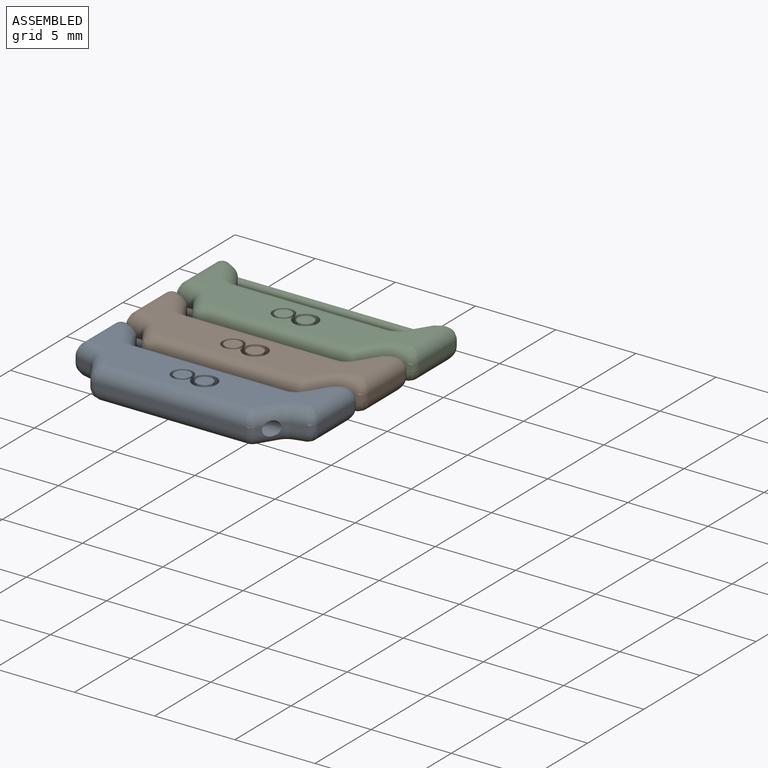
[diagram: assembled view]
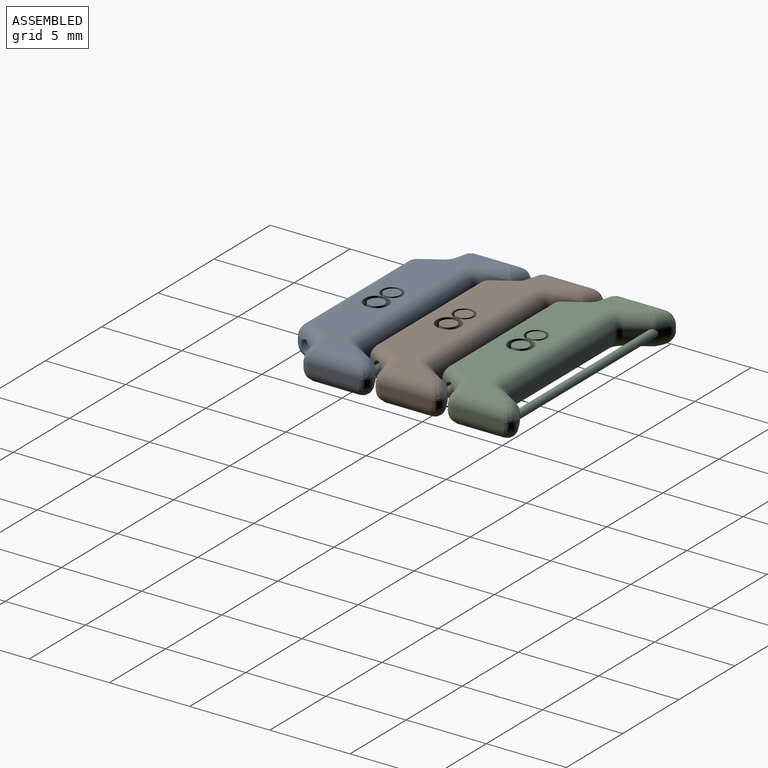
[diagram: assembled view, second angle]
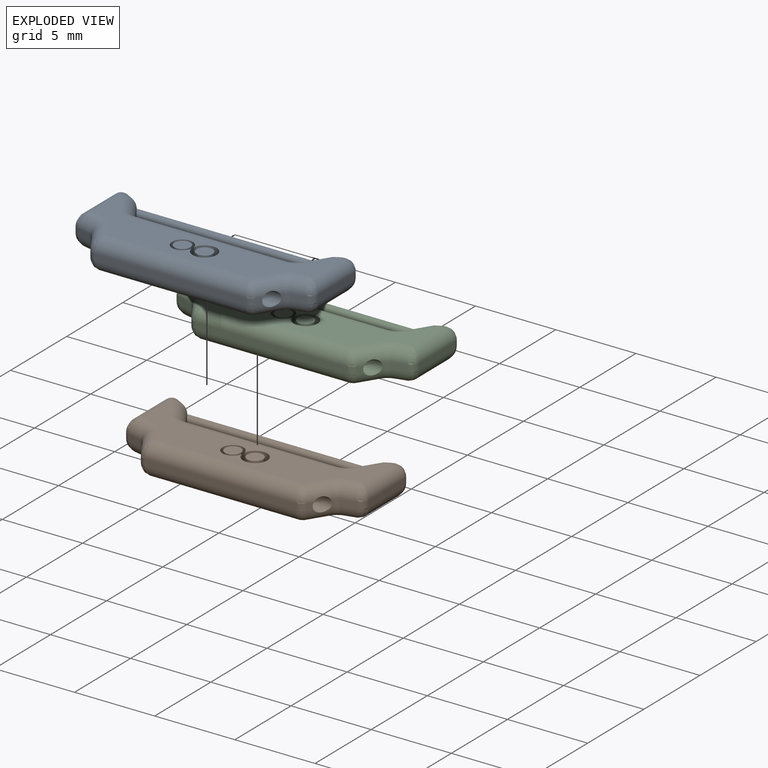
[diagram: exploded view]
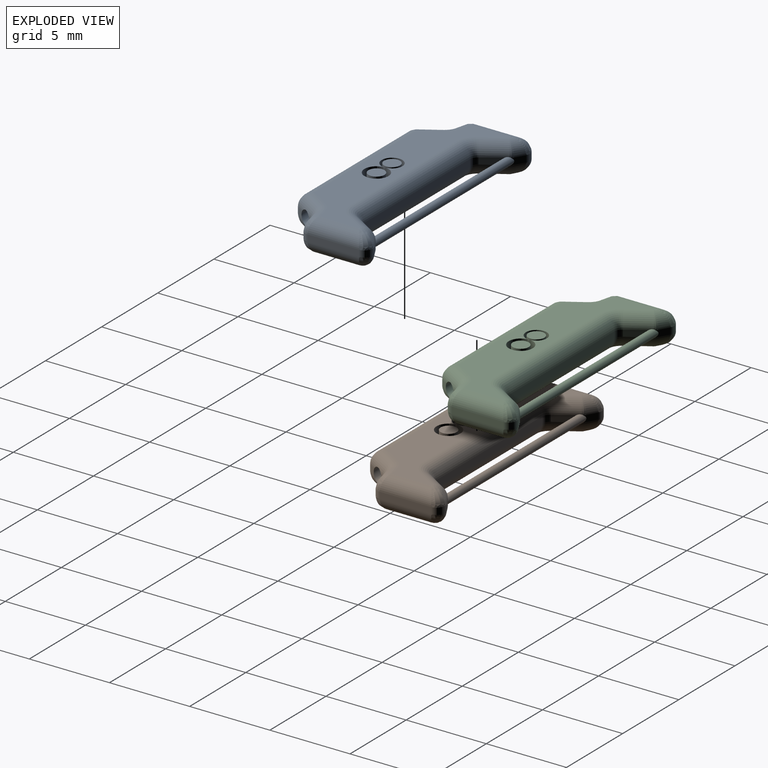
[diagram: exploded view, second angle]
ASSEMBLY  parts=3 mates=2
PART A: 85 faces, bbox 15.1x6.6x2.1 mm
  f0: cylinder r=0.5mm len=0.4mm, axis (0,0,-1), area 0mm2, adj f2,f6,f16,f77
  f1: cylinder r=0.5mm len=0.4mm, axis (0,0,-1), area 0mm2, adj f5,f9,f20,f77
  f2: bspline ~0.91x0.66mm, area 0.2mm2, adj f0,f3,f36,f77
  f3: cylinder r=0.8mm len=1.77mm, axis (0.53,0.85,0), area 1.9mm2, adj f2,f17,f24,f37,f77
  f4: cylinder r=0.8mm len=1.77mm, axis (0.53,-0.85,0), area 1.9mm2, adj f5,f19,f24,f41,f77
  f5: bspline ~0.91x0.66mm, area 0.2mm2, adj f1,f4,f45,f77
  f6: bspline ~0.91x0.66mm, area 0.2mm2, adj f0,f7,f56,f77
  f7: cylinder r=0.8mm len=1.77mm, axis (-0.53,-0.85,0), area 1.9mm2, adj f6,f17,f25,f58,f77
  f8: cylinder r=0.8mm len=1.77mm, axis (-0.53,0.85,0), area 1.9mm2, adj f9,f19,f25,f62,f77
  f9: bspline ~0.91x0.66mm, area 0.2mm2, adj f1,f8,f66,f77
  f10: plane 0.46x0.42mm, normal (0.85,-0.53,0), area 0.2mm2, adj f26,f46,f65,f76
  f11: plane 0.46x0.18mm, normal (-0.85,-0.53,0), area 0mm2, adj f34,f54,f73,f76
  f12: plane 9.45x0.4mm, normal (0,-1,0), area 3.8mm2, adj f26,f35,f50,f69
  f13: plane 0.46x0.18mm, normal (0.85,-0.53,0), area 0mm2, adj f27,f46,f65,f76
  f14: plane 0.86x0.4mm, normal (0.24,-0.97,0), area 0.4mm2, adj f27,f28,f43,f63
  f15: plane 3.2x0.4mm, normal (1,0,0), area 1.3mm2, adj f28,f29,f40,f59
  f16: plane 0.58x0.4mm, normal (-0.49,0.87,0), area 0.3mm2, adj f0,f29,f36,f56
  f17: plane 1.12x0.7mm, normal (-0.85,0.53,0), area 0.5mm2, adj f3,f7,f30,f77
  f18: plane 9.45x0.4mm, normal (0,1,0), area 3.8mm2, adj f30,f31,f39,f60
  f19: plane 1.12x0.7mm, normal (0.85,0.53,0), area 0.5mm2, adj f4,f8,f31,f77
  f20: plane 0.58x0.4mm, normal (0.49,0.87,0), area 0.3mm2, adj f1,f32,f45,f66
  f21: plane 3.2x0.4mm, normal (-1,0,0), area 1.3mm2, adj f32,f33,f49,f70
  f22: plane 0.86x0.4mm, normal (-0.24,-0.97,0), area 0.4mm2, adj f33,f34,f53,f74
  f23: plane 0.46x0.42mm, normal (-0.85,-0.53,0), area 0.2mm2, adj f35,f54,f73,f76
  f24: plane 13.4x4.33mm, normal (0,0,1), area 26.3mm2, adj f3,f4,f36,f37,f39,f40,f41,f43
  f25: plane 13.4x4.33mm, normal (0,0,-1), area 29.4mm2, adj f7,f8,f56,f58,f59,f60,f62,f63
  f26: cylinder r=0.5mm len=0.42mm, axis (0,0,1), area 0.2mm2, adj f10,f12,f48,f67
  f27: cylinder r=0.5mm len=0.4mm, axis (0,0,1), area 0.2mm2, adj f13,f14,f44,f64
  f28: cylinder r=0.5mm len=0.49mm, axis (0,0,-1), area 0.3mm2, adj f14,f15,f42,f61
  f29: cylinder r=0.5mm len=0.75mm, axis (0,0,-1), area 0.4mm2, adj f15,f16,f38,f57
  f30: cylinder r=0.5mm len=0.42mm, axis (0,0,1), area 0.2mm2, adj f17,f18,f37,f58
  f31: cylinder r=0.5mm len=0.42mm, axis (0,0,-1), area 0.2mm2, adj f18,f19,f41,f62
  f32: cylinder r=0.5mm len=0.75mm, axis (0,0,-1), area 0.4mm2, adj f20,f21,f47,f68
  f33: cylinder r=0.5mm len=0.49mm, axis (0,0,-1), area 0.3mm2, adj f21,f22,f51,f72
  f34: cylinder r=0.5mm len=0.4mm, axis (0,0,1), area 0.2mm2, adj f11,f22,f55,f75
  f35: cylinder r=0.5mm len=0.42mm, axis (0,0,-1), area 0.2mm2, adj f12,f23,f52,f71
  f36: cylinder r=0.8mm len=1.02mm, axis (0.87,0.49,0), area 0.6mm2, adj f2,f16,f24,f38
  f37: torus R=1.3mm, axis (0,0,1), area 1mm2, adj f3,f24,f30,f39
  f38: bspline ~1.37x1.09mm, area 0.9mm2, adj f29,f36,f40
  f39: cylinder r=0.8mm len=9.45mm, axis (1,0,0), area 11.9mm2, adj f18,f24,f37,f41
  f40: cylinder r=0.8mm len=3.2mm, axis (0,-1,0), area 3.6mm2, adj f15,f24,f38,f42
  f41: torus R=1.3mm, axis (0,0,1), area 1mm2, adj f4,f24,f31,f39
  f42: bspline ~0.94x0.8mm, area 0.4mm2, adj f28,f40,f43
  f43: cylinder r=0.8mm len=1.06mm, axis (-0.97,-0.24,0), area 1mm2, adj f14,f24,f42,f44
  f44: torus R=1.3mm, axis (0,0,1), area 0.8mm2, adj f24,f27,f43,f46
  f45: cylinder r=0.8mm len=1.02mm, axis (0.87,-0.49,0), area 0.6mm2, adj f5,f20,f24,f47
  f46: cylinder r=0.8mm len=1.71mm, axis (-0.53,-0.85,0), area 1.6mm2, adj f10,f13,f24,f44,f48,f76
  f47: bspline ~1.37x1.09mm, area 0.9mm2, adj f32,f45,f49
  f48: bspline ~0.92x0.8mm, area 0.3mm2, adj f26,f46,f50
  f49: cylinder r=0.8mm len=3.2mm, axis (0,1,0), area 3.6mm2, adj f21,f24,f47,f51
  f50: cylinder r=0.8mm len=9.45mm, axis (-1,0,0), area 11.7mm2, adj f12,f24,f48,f52
  f51: bspline ~0.94x0.8mm, area 0.4mm2, adj f33,f49,f53
  f52: bspline ~0.92x0.8mm, area 0.3mm2, adj f35,f50,f54
  f53: cylinder r=0.8mm len=1.06mm, axis (-0.97,0.24,0), area 1mm2, adj f22,f24,f51,f55
  f54: cylinder r=0.8mm len=1.71mm, axis (-0.53,0.85,0), area 1.6mm2, adj f11,f23,f24,f52,f55,f76
  f55: torus R=1.3mm, axis (0,0,1), area 0.8mm2, adj f24,f34,f53,f54
  f56: cylinder r=0.8mm len=1.02mm, axis (-0.87,-0.49,0), area 0.6mm2, adj f6,f16,f25,f57
  f57: bspline ~1.37x1.09mm, area 0.9mm2, adj f29,f56,f59
  f58: torus R=1.3mm, axis (0,0,1), area 1mm2, adj f7,f25,f30,f60
  f59: cylinder r=0.8mm len=3.2mm, axis (0,1,0), area 3.6mm2, adj f15,f25,f57,f61
  f60: cylinder r=0.8mm len=9.45mm, axis (-1,0,0), area 11.9mm2, adj f18,f25,f58,f62
  f61: bspline ~0.94x0.8mm, area 0.4mm2, adj f28,f59,f63
  f62: torus R=1.3mm, axis (0,0,1), area 1mm2, adj f8,f25,f31,f60
  f63: cylinder r=0.8mm len=1.06mm, axis (0.97,0.24,0), area 1mm2, adj f14,f25,f61,f64
  f64: torus R=1.3mm, axis (0,0,1), area 0.8mm2, adj f25,f27,f63,f65
  f65: cylinder r=0.8mm len=1.71mm, axis (0.53,0.85,0), area 1.6mm2, adj f10,f13,f25,f64,f67,f76
  f66: cylinder r=0.8mm len=1.02mm, axis (-0.87,0.49,0), area 0.6mm2, adj f9,f20,f25,f68
  f67: bspline ~0.92x0.8mm, area 0.3mm2, adj f26,f65,f69
  f68: bspline ~1.37x1.09mm, area 0.9mm2, adj f32,f66,f70
  f69: cylinder r=0.8mm len=9.45mm, axis (1,0,0), area 11.7mm2, adj f12,f25,f67,f71
  f70: cylinder r=0.8mm len=3.2mm, axis (0,-1,0), area 3.6mm2, adj f21,f25,f68,f72
  f71: bspline ~0.92x0.8mm, area 0.3mm2, adj f35,f69,f73
  f72: bspline ~0.94x0.8mm, area 0.4mm2, adj f33,f70,f74
  f73: cylinder r=0.8mm len=1.71mm, axis (0.53,-0.85,0), area 1.6mm2, adj f11,f23,f25,f71,f75,f76
  f74: cylinder r=0.8mm len=1.06mm, axis (0.97,-0.24,0), area 1mm2, adj f22,f25,f72,f75
  f75: torus R=1.3mm, axis (0,0,1), area 0.8mm2, adj f25,f34,f73,f74
  f76: cylinder r=0.45mm len=11.77mm, axis (1,0,0), area 31.6mm2, adj f10,f11,f13,f23,f46,f54,f65,f73
  f77: cylinder r=0.25mm len=12.34mm, axis (-1,0,0), area 18.7mm2, adj f0,f1,f2,f3,f4,f5,f6,f7
  f78: cylinder r=0.75mm len=1.5mm, axis (0,0,1), area 3.6mm2, adj f24,f76,f79,f80
  f79: cylinder r=0.65mm len=1.3mm, axis (0,0,1), area 3.1mm2, adj f24,f76,f78,f80
  f80: plane 2.79x1.35mm, normal (0,0,1), area 1.4mm2, adj f76,f78,f79,f81,f82
  f81: cylinder r=0.5mm len=1mm, axis (0,0,1), area 2.5mm2, adj f80,f84
  f82: cylinder r=0.5mm len=1mm, axis (0,0,1), area 2.5mm2, adj f80,f83
  f83: plane 1x1mm, normal (0,0,1), area 0.8mm2, adj f82
  f84: plane 1x1mm, normal (0,0,1), area 0.8mm2, adj f81
PART B: same geometry as A
PART C: same geometry as A
PLACE A t=(13.36,3.02,4.31)mm
PLACE B t=(13.36,7.52,4.31)mm
PLACE C t=(13.36,12.02,4.31)mm
MATE revolute B.f76 <-> A.f77  axis (1,0,0) through (13.36,8.52,4.31)mm
MATE revolute C.f76 <-> B.f77  axis (1,0,0) through (13.36,13.02,4.31)mm
